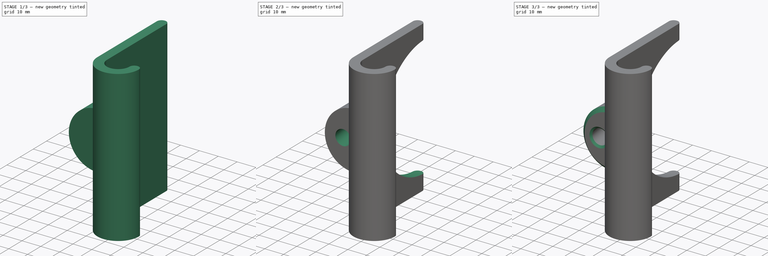
[diagram: build sequence overview — one tinted view per stage of 3, left to right]
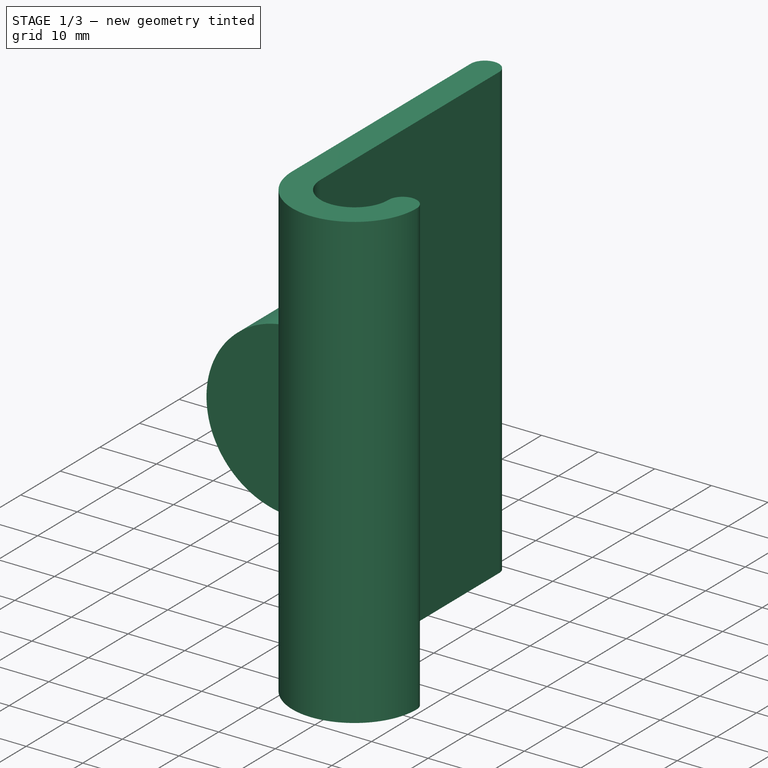
[diagram: stage 1 of 3 — iso view after this stage's code; geometry added in this stage tinted green]
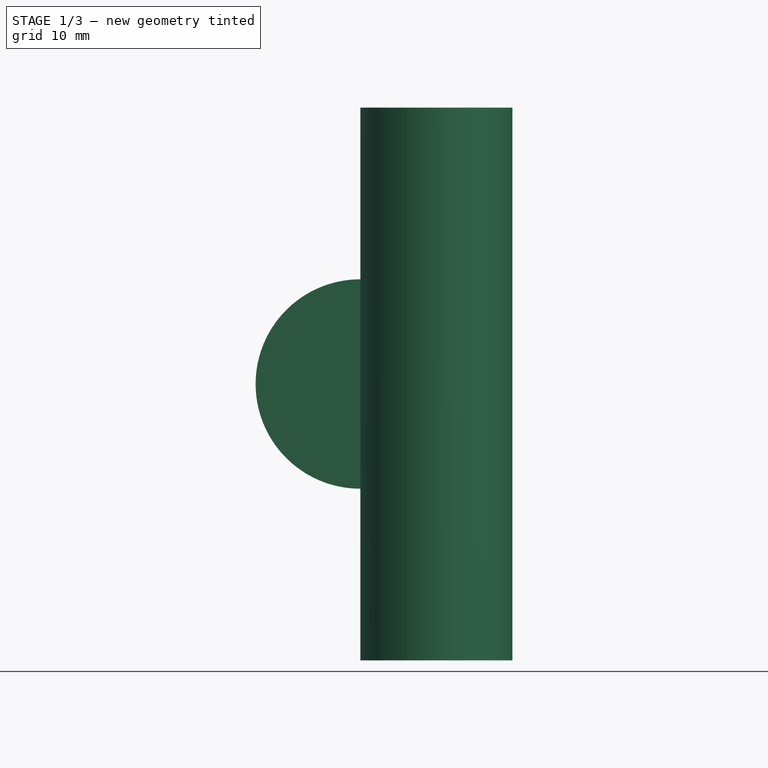
[diagram: stage 1 of 3 — front view after this stage's code; geometry added in this stage tinted green]
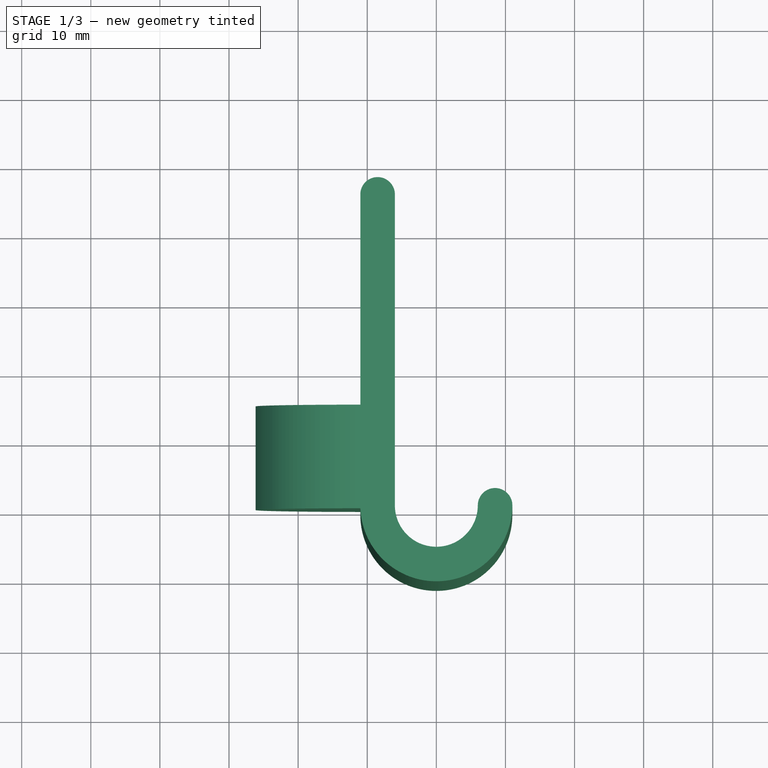
[diagram: stage 1 of 3 — top view after this stage's code; geometry added in this stage tinted green]
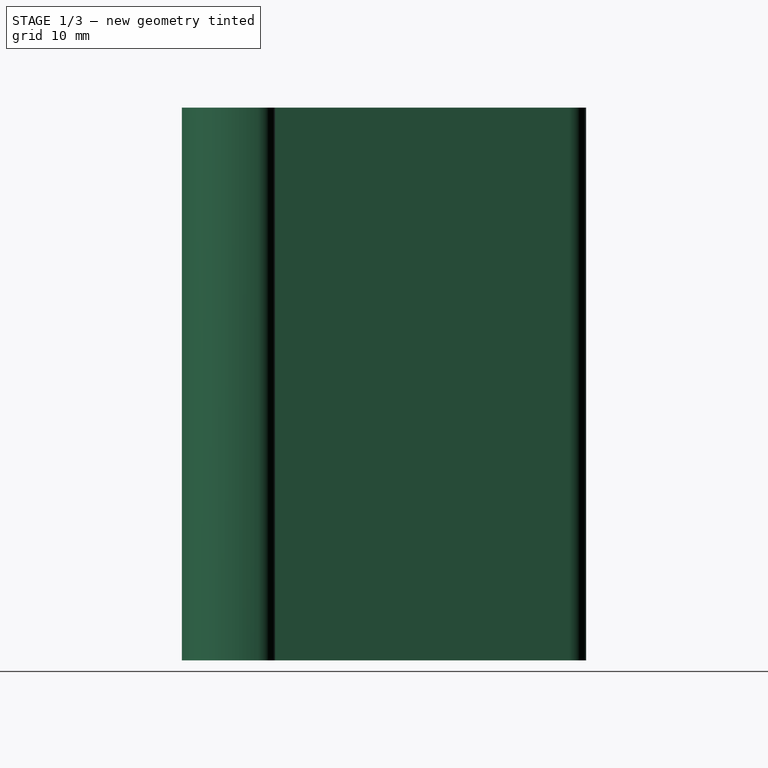
[diagram: stage 1 of 3 — right view after this stage's code; geometry added in this stage tinted green]
FCSTD DOCUMENT  (FreeCAD 0.19R22262 (Git))
Label: handyhalter_v2_2
License: All rights reserved
LicenseURL: http://en.wikipedia.org/wiki/All_rights_reserved
objects: Sketcher::SketchObject×4, PartDesign::Chamfer×3, PartDesign::Pad×2, PartDesign::Pocket×2, PartDesign::Plane×1, PartDesign::Body×1
note: 20 computed .brp shape members not serialized (recipe doc carries the construction recipe); baked Part::Feature solids carry a one-line shape summary decoded from their .brp

FEATURE [Sketcher::SketchObject] Sketch
  MapMode = 5
  Support = -> [XY_Plane]
  sketch-geometry (6):
    g0: LineSegment StartX=-11 StartY=45 StartZ=0 EndX=-11 EndY=3.53282e-11 EndZ=0
    g1: ArcOfCircle CenterX=0 CenterY=0 CenterZ=0 NormalX=0 NormalY=0 NormalZ=1 AngleXU=0 Radius=11 StartAngle=3.14159 EndAngle=6.28319
    g2: ArcOfCircle CenterX=0 CenterY=0 CenterZ=0 NormalX=0 NormalY=0 NormalZ=1 AngleXU=0 Radius=6 StartAngle=3.14159 EndAngle=6.28319
    g3: LineSegment StartX=-6 StartY=-1.9e-15 StartZ=0 EndX=-6 EndY=45 EndZ=0
    g4: ArcOfCircle CenterX=-8.5 CenterY=45 CenterZ=0 NormalX=0 NormalY=0 NormalZ=1 AngleXU=0 Radius=2.5 StartAngle=-1.4513e-12 EndAngle=3.14159
    g5: ArcOfCircle CenterX=8.5 CenterY=0 CenterZ=0 NormalX=0 NormalY=0 NormalZ=1 AngleXU=0 Radius=2.5 StartAngle=-3.2e-14 EndAngle=3.14159
  constraints (17):
    c: Vertical(g0)
    c: Tangent(g0,g1) = -1.5708
    c: Tangent(g2,g3) = 1.5708
    c: Tangent(g3,g4) = -1.5708
    c: Coincident(g4,g0)
    c: Vertical(g3)
    c: Coincident(g2,g1)
    c: Horizontal(g3,g0)
    c: DistanceX(g0,g3) = 5
    c: Horizontal(g1,g2)
    c: Coincident(g5,g2)
    c: Coincident(g5,g1)
    c: Horizontal(g5,g1)
    c: Angle(g5) = 3.14159
    c: Coincident(g1,g-1)
    c: DistanceX(g2,g2) = 12
    c: DistanceY(g0,g0) = 45
FEATURE [PartDesign::Pad] Pad
  Length = 80
  Length2 = 100
  Midplane = true
  Profile = -> Sketch
  Refine = true
  Type = 0
FEATURE [Sketcher::SketchObject] Sketch001
  ExternalGeometry = -> [Pad]
  MapMode = 5
  Placement = pos=(0,0,0) rot=(1,0,0;1.5708rad)
  Support = -> [XZ_Plane]
  sketch-geometry (2):
    g0: ArcOfCircle CenterX=-11 CenterY=0 CenterZ=0 NormalX=0 NormalY=0 NormalZ=1 AngleXU=0 Radius=15.15 StartAngle=1.5708 EndAngle=4.71239
    g1: LineSegment StartX=-11 StartY=15.15 StartZ=0 EndX=-11 EndY=-15.15 EndZ=0
  constraints (7):
    c: Vertical(g0,g-3)
    c: Angle(g0) = 3.14159
    c: PointOnObject(g0,g-1)
    c: Vertical(g0,g-3)
    c: DistanceY(g0,g0) = 15.15
    c: Coincident(g1,g0)
    c: Coincident(g1,g0)
FEATURE [PartDesign::Pad] Pad001
  BaseFeature = -> Pad
  Length = 15
  Length2 = 100
  Profile = -> Sketch001
  Refine = true
  Reversed = true
  Type = 0
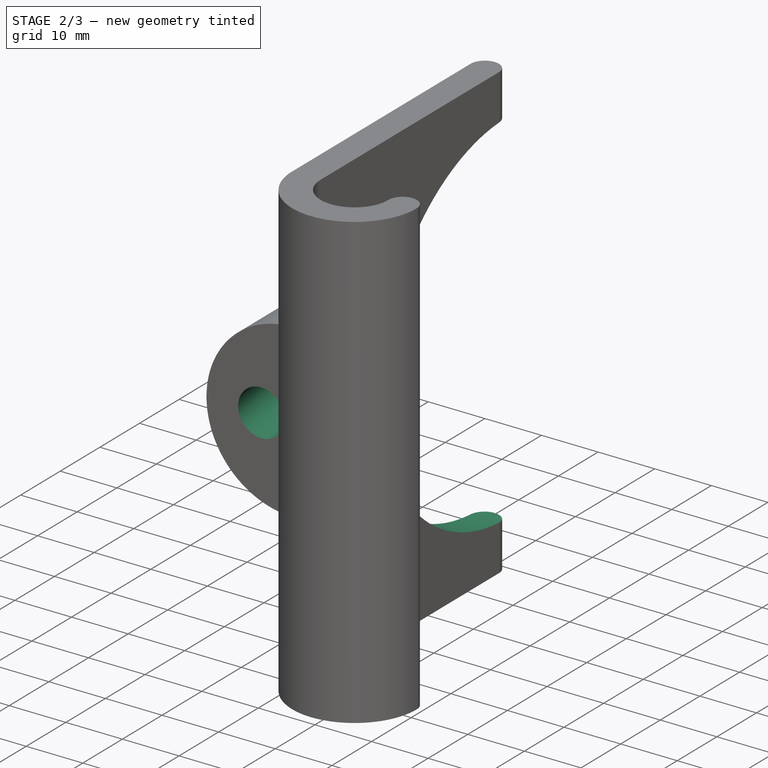
[diagram: stage 2 of 3 — iso view after this stage's code; geometry added in this stage tinted green]
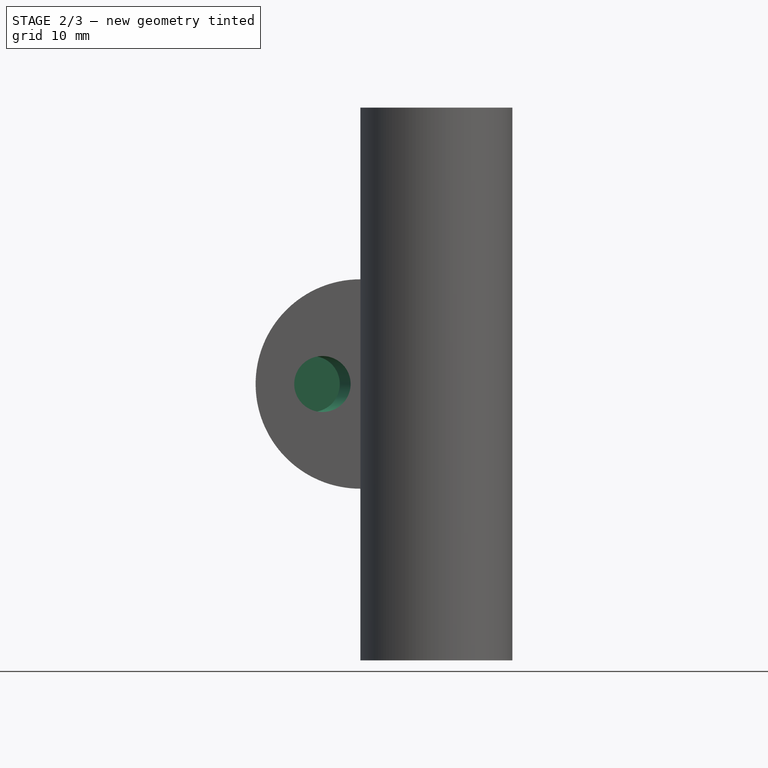
[diagram: stage 2 of 3 — front view after this stage's code; geometry added in this stage tinted green]
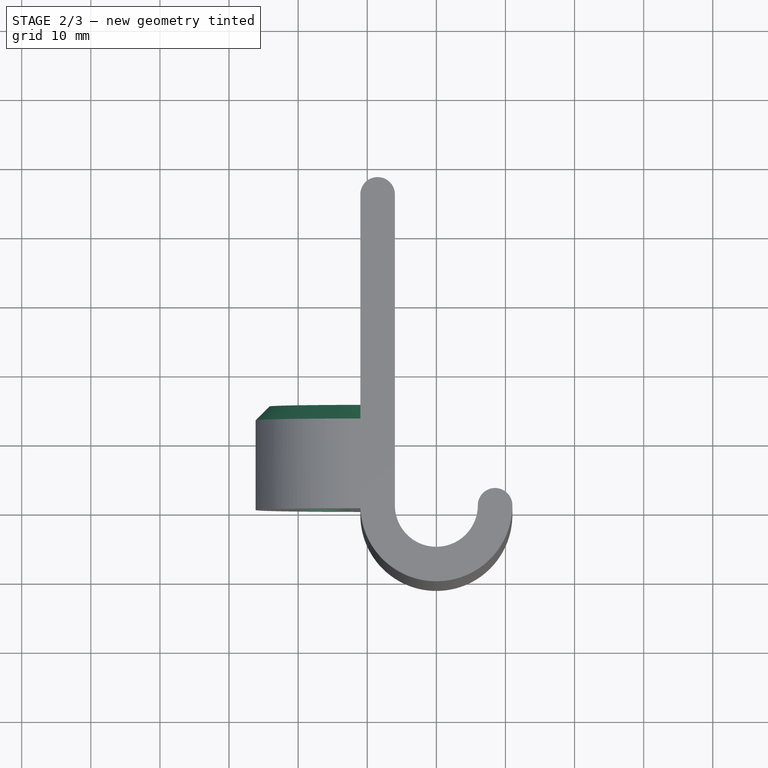
[diagram: stage 2 of 3 — top view after this stage's code; geometry added in this stage tinted green]
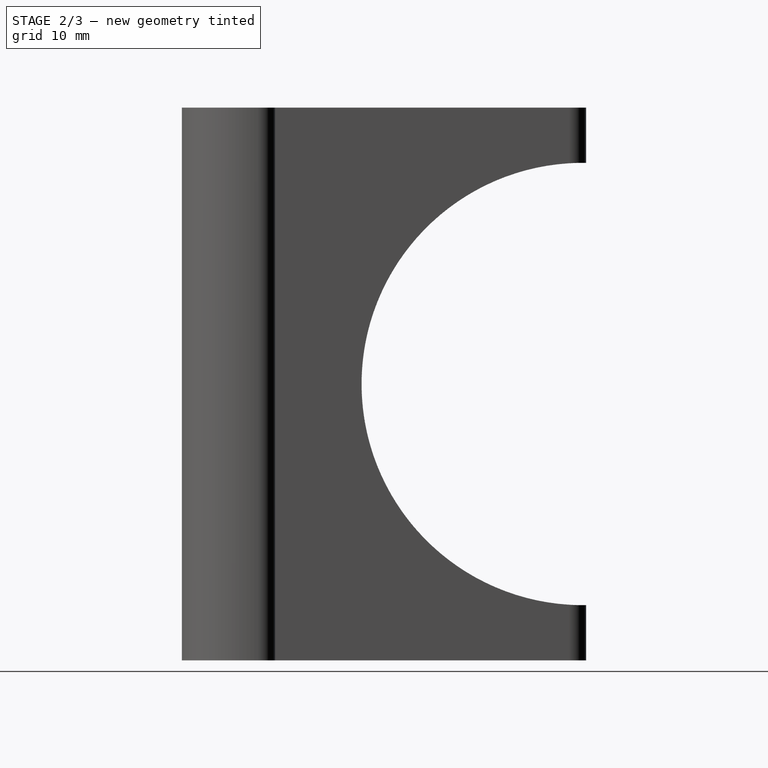
[diagram: stage 2 of 3 — right view after this stage's code; geometry added in this stage tinted green]
FEATURE [Sketcher::SketchObject] Sketch002
  ExternalGeometry = -> [Pad001]
  MapMode = 5
  Placement = pos=(-6,0,0) rot=(0.57735,0.57735,0.57735;2.0944rad)
  Support = -> [Pad001]
  sketch-geometry (5):
    g0: LineSegment StartX=108.94 StartY=32 StartZ=0 EndX=47 EndY=32 EndZ=0
    g1: ArcOfCircle CenterX=47 CenterY=0 CenterZ=0 NormalX=0 NormalY=0 NormalZ=1 AngleXU=0 Radius=32 StartAngle=1.5708 EndAngle=4.71239
    g2: LineSegment StartX=47 StartY=-32 StartZ=0 EndX=108.94 EndY=-32 EndZ=0
    g3: LineSegment StartX=108.94 StartY=-32 StartZ=0 EndX=108.94 EndY=32 EndZ=0
    g4: GeomPoint X=15 Y=0 Z=0
  constraints (14):
    c: Horizontal(g0)
    c: Tangent(g0,g1) = -1.5708
    c: Coincident(g1,g2)
    c: Coincident(g2,g3)
    c: Coincident(g3,g0)
    c: PointOnObject(g1,g-1)
    c: Parallel(g2,g0)
    c: Vertical(g1,g0)
    c: DistanceY(g0,g-3) = 8
    c: Vertical(g3)
    c: PointOnObject(g4,g1)
    c: PointOnObject(g4,g-1)
    c: Distance(g2) = 61.94
    c: PointOnObject(g4,g-5)
FEATURE [PartDesign::Pocket] Pocket
  BaseFeature = -> Pad001
  Length = 5
  Length2 = 100
  Profile = -> Sketch002
  Refine = true
  Type = 1
FEATURE [PartDesign::Plane] DatumPlane
  AttachmentOffset = pos=(15,0,0) rot=(0,-1,0;0.122173rad)
  Length = 73.4149
  MapMode = 45
  Placement = pos=(-3.31603,0,8e-16) rot=(-0.99628,-0.060935,0.060935;1.57452rad)
  ResizeMode = 0
  Support = -> [Pocket,Sketch001]
  Width = 93.8106
FEATURE [Sketcher::SketchObject] Sketch003
  ExternalGeometry = -> [Pocket]
  MapMode = 5
  Placement = pos=(-3.31603,-1e-16,8e-16) rot=(-0.99628,-0.060935,0.060935;1.57452rad)
  Support = -> [DatumPlane]
  sketch-geometry (2):
    g0: Circle CenterX=-13.0703 CenterY=0 CenterZ=0 NormalX=0 NormalY=0 NormalZ=1 AngleXU=0 Radius=4.05
    g1: GeomPoint X=-9.02026 Y=0 Z=0
  constraints (4):
    c: PointOnObject(g0,g-1)
    c: Radius(g0) = 4.05
    c: PointOnObject(g1,g0)
    c: PointOnObject(g1,g-1)
FEATURE [PartDesign::Pocket] Pocket001
  BaseFeature = -> Pocket
  Length = 14
  Length2 = 100
  Profile = -> Sketch003
  Refine = true
  Reversed = true
  Type = 0
FEATURE [PartDesign::Chamfer] Chamfer
  Angle = 45
  Base = -> Pocket001 [Edge40]
  BaseFeature = -> Pocket001
  ChamferType = 0
  FlipDirection = false
  Refine = true
  Size = 2
  Size2 = 1
  SupportTransform = false
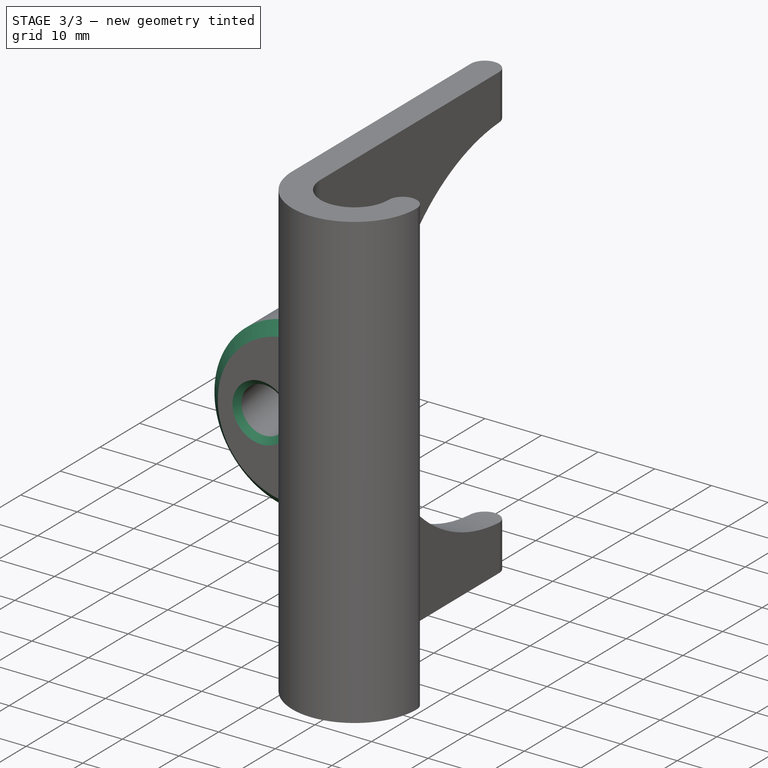
[diagram: stage 3 of 3 — iso view after this stage's code; geometry added in this stage tinted green]
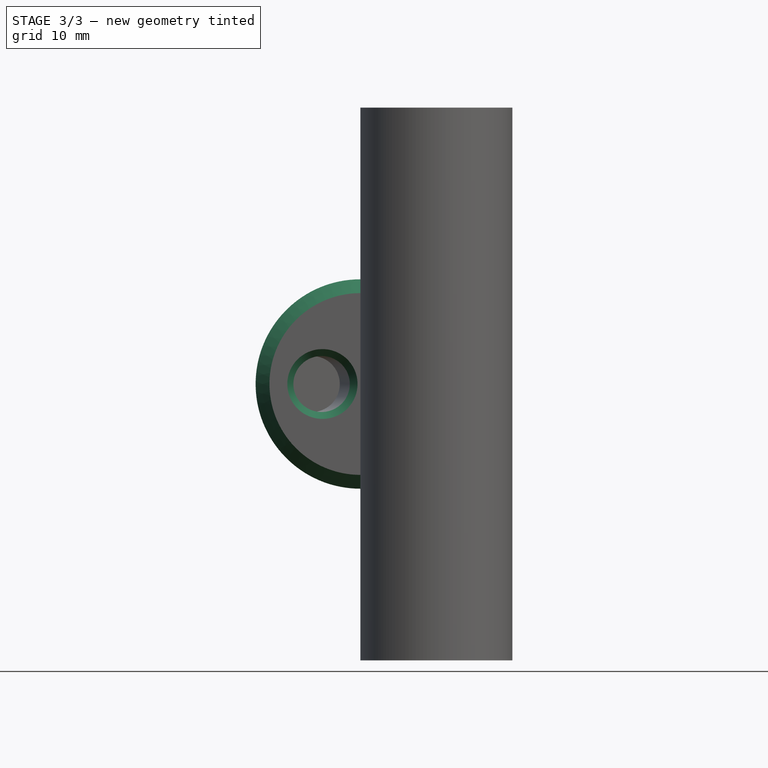
[diagram: stage 3 of 3 — front view after this stage's code; geometry added in this stage tinted green]
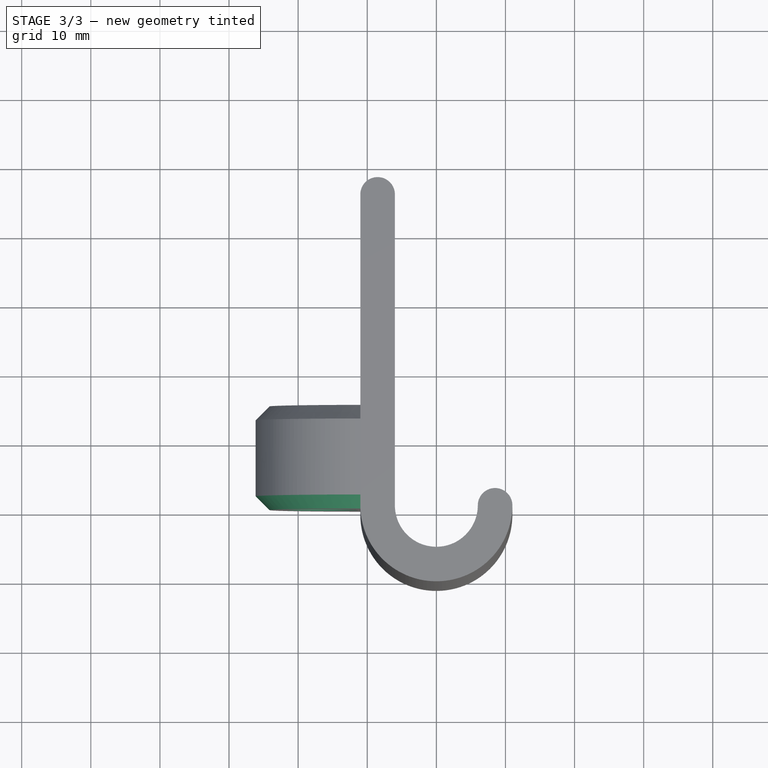
[diagram: stage 3 of 3 — top view after this stage's code; geometry added in this stage tinted green]
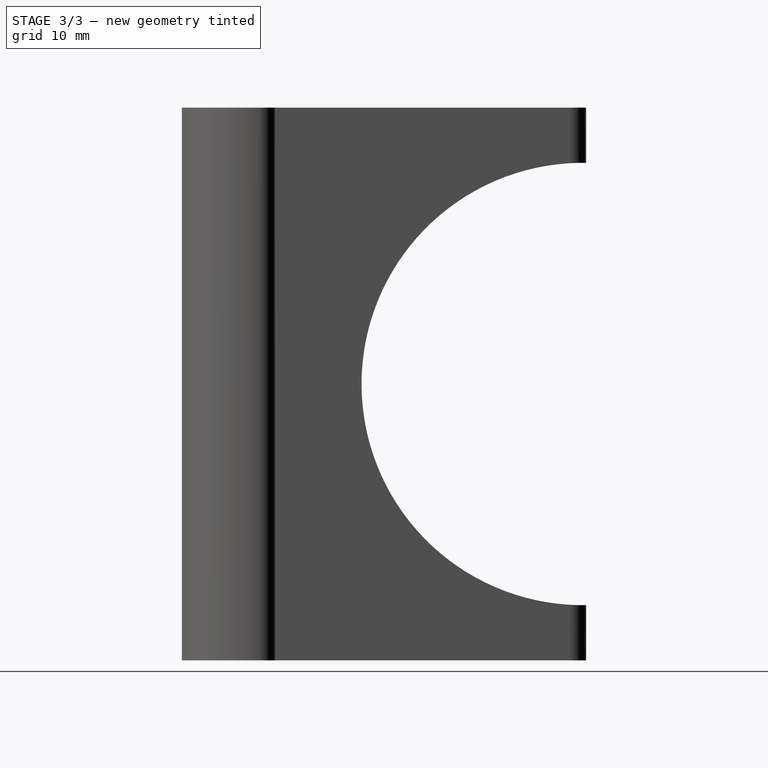
[diagram: stage 3 of 3 — right view after this stage's code; geometry added in this stage tinted green]
FEATURE [PartDesign::Chamfer] Chamfer001
  Angle = 45
  Base = -> Chamfer [Edge10]
  BaseFeature = -> Chamfer
  ChamferType = 0
  FlipDirection = false
  Refine = true
  Size = 2
  Size2 = 1
  SupportTransform = false
FEATURE [PartDesign::Chamfer] Chamfer002
  Angle = 45
  Base = -> Chamfer001 [Edge43]
  BaseFeature = -> Chamfer001
  ChamferType = 0
  FlipDirection = false
  Refine = true
  Size = 1
  Size2 = 1
  SupportTransform = false
FEATURE [PartDesign::Body] Body
  Group = -> [Sketch,Pad,Sketch001,Pad001,Sketch002,Pocket,DatumPlane,Sketch003,Pocket001,Chamfer,Chamfer001,Chamfer002]
  Origin = -> Origin
  Tip = -> Chamfer002
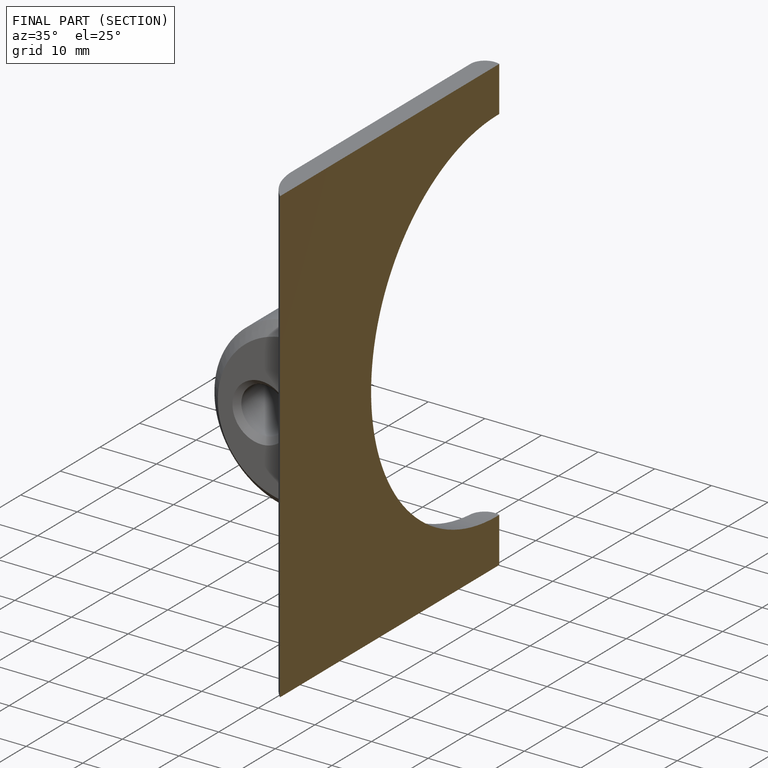
[diagram: finished part — half-section view (interior)]
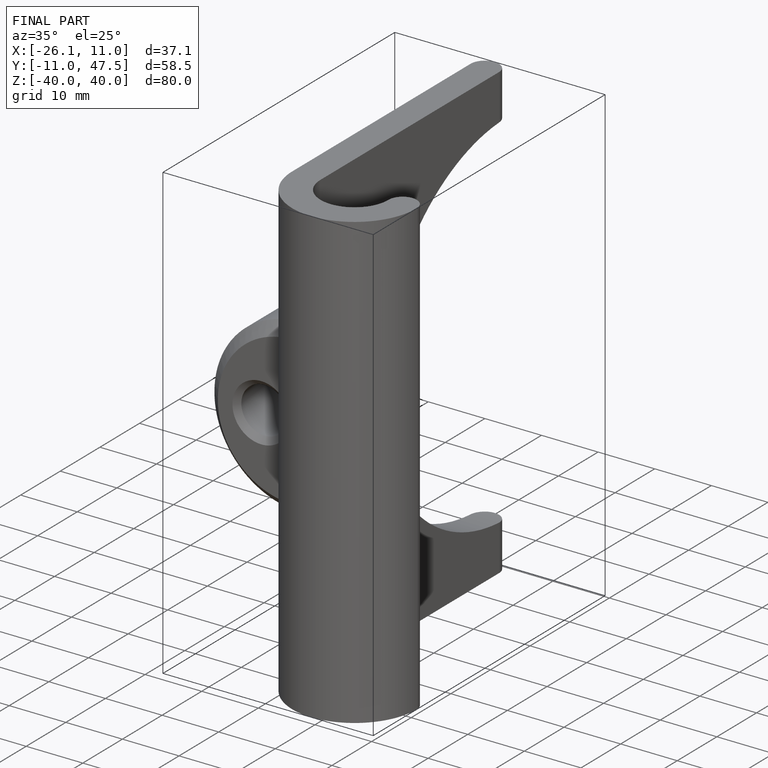
[diagram: finished part — iso view with bounding-box wireframe]
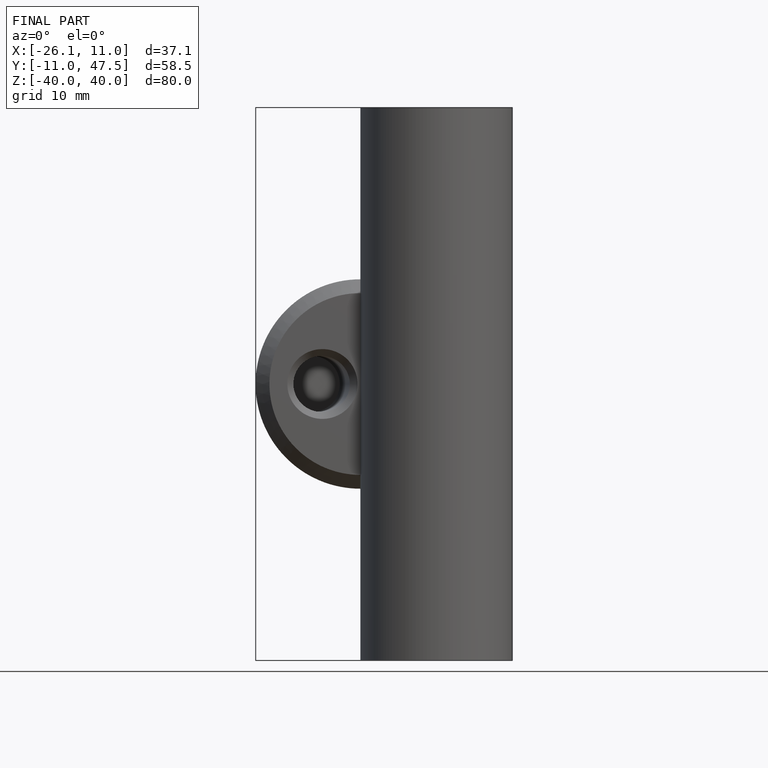
[diagram: finished part — front view with bounding-box wireframe]
